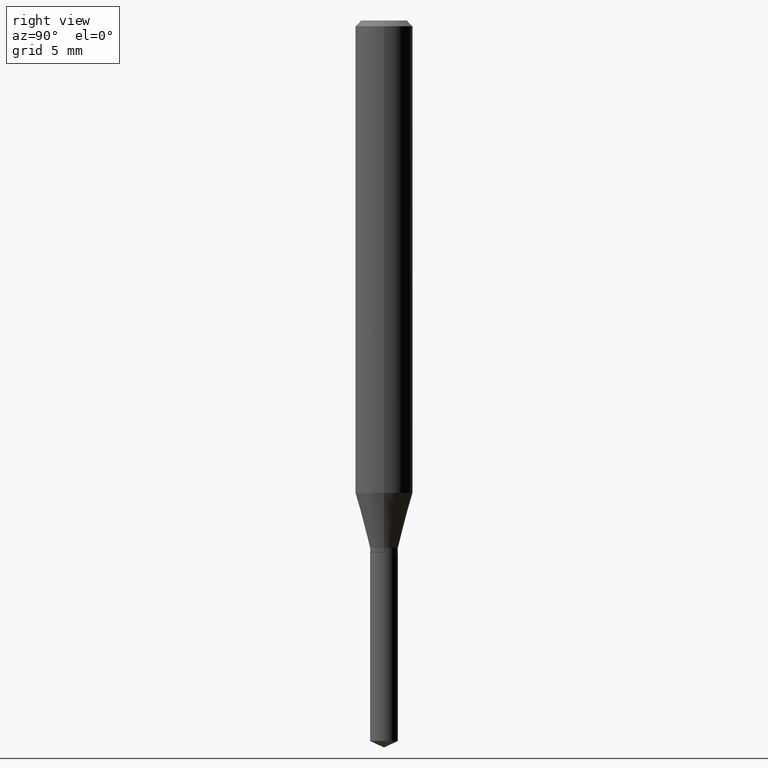
[diagram: clean part render]
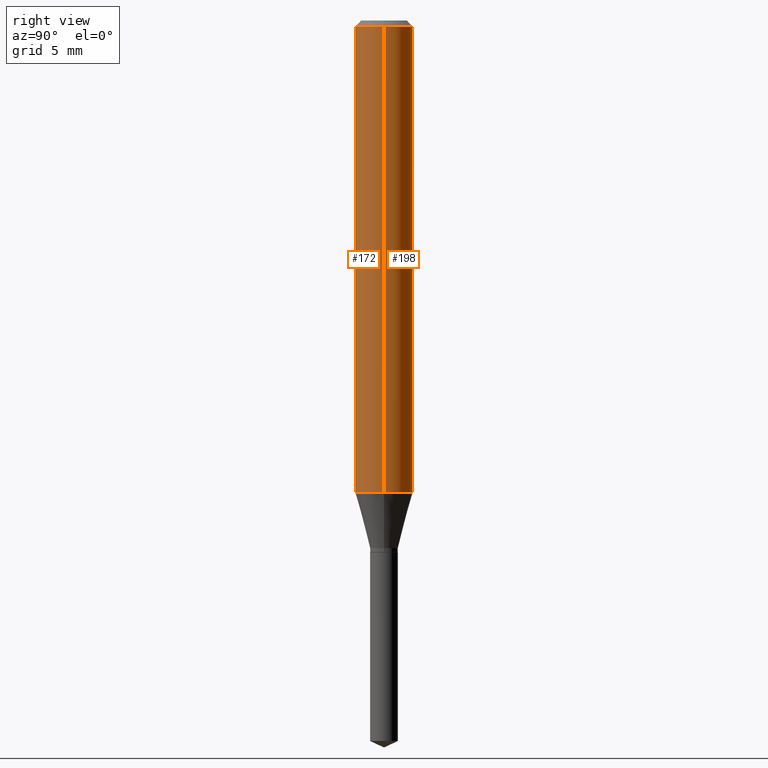
[diagram: same view with one multi-face feature highlighted, each face labeled with its STEP entity id]
A machine part, right view. The highlighted faces form ONE feature: a constant-radius fillet chain: 2 tangent blend faces with common blend radius 1.4999 mm. The faces share edges in the B-rep.
Their STEP definitions:
[1] entity #198 (Cylinder):
#4 = LINE ( 'NONE', #158, #81 ) ;
#40 = VERTEX_POINT ( 'NONE', #341 ) ;
#72 = ORIENTED_EDGE ( 'NONE', *, *, #137, .F. ) ;
#81 = VECTOR ( 'NONE', #130, 39.37007874015748143 ) ;
#83 = CARTESIAN_POINT ( 'NONE',  ( -0.05905000000000011628, -2.974397335001072911E-15, -0.9720724503691490215 ) ) ;
#98 = CARTESIAN_POINT ( 'NONE',  ( -0.05905000000000006077, 4.195754854663395916E-16, -2.904631170795524694E-30 ) ) ;
#115 = VECTOR ( 'NONE', #475, 39.37007874015748143 ) ;
#127 = DIRECTION ( 'NONE',  ( -2.445468806185136597E-29, 3.491481338843145583E-15, 1.000000000000000000 ) ) ;
#130 = DIRECTION ( 'NONE',  ( -2.445468806185136877E-29, 3.491481338843145188E-15, 1.000000000000000000 ) ) ;
#134 = ORIENTED_EDGE ( 'NONE', *, *, #385, .F. ) ;
#136 = DIRECTION ( 'NONE',  ( 1.000000000000000000, -6.982962677686266711E-15, 0.000000000000000000 ) ) ;
#137 = EDGE_CURVE ( 'NONE', #40, #268, #4, .T. ) ;
#141 = CARTESIAN_POINT ( 'NONE',  ( -0.05904999999999999832, -1.298028122073235376E-15, -0.01181000000000006871 ) ) ;
#152 = VERTEX_POINT ( 'NONE', #83 ) ;
#158 = CARTESIAN_POINT ( 'NONE',  ( 0.05905000000000006077, -4.123439461173744764E-16, 2.879382386107503023E-30 ) ) ;
#185 = DIRECTION ( 'NONE',  ( -2.445468806185136597E-29, 3.491481338843145583E-15, 1.000000000000000000 ) ) ;
#198 = ADVANCED_FACE ( 'NONE', ( #432 ), #242, .T. ) ;
#209 = CARTESIAN_POINT ( 'NONE',  ( 0.05904999999999999832, -4.535783407291118600E-16, -0.01181000000000006871 ) ) ;
#215 = LINE ( 'NONE', #98, #115 ) ;
#224 = EDGE_CURVE ( 'NONE', #152, #248, #215, .T. ) ;
#236 = AXIS2_PLACEMENT_3D ( 'NONE', #329, #471, #136 ) ;
#242 = CYLINDRICAL_SURFACE ( 'NONE', #311, 0.05905000000000006077 ) ;
#246 = CIRCLE ( 'NONE', #478, 0.05905000000000011628 ) ;
#248 = VERTEX_POINT ( 'NONE', #141 ) ;
#266 = DIRECTION ( 'NONE',  ( 1.000000000000000000, -6.982962677686266711E-15, 0.000000000000000000 ) ) ;
#268 = VERTEX_POINT ( 'NONE', #209 ) ;
#270 = ORIENTED_EDGE ( 'NONE', *, *, #224, .T. ) ;
#280 = DIRECTION ( 'NONE',  ( 1.000000000000000000, -6.982962677686266711E-15, 4.876176775795935793E-29 ) ) ;
#291 = ORIENTED_EDGE ( 'NONE', *, *, #457, .T. ) ;
#311 = AXIS2_PLACEMENT_3D ( 'NONE', #356, #127, #280 ) ;
#329 = CARTESIAN_POINT ( 'NONE',  ( 2.888098660104663328E-31, -4.123439461173779030E-17, -0.01181000000000006871 ) ) ;
#341 = CARTESIAN_POINT ( 'NONE',  ( 0.05905000000000011628, -3.806316766584788113E-15, -0.9720724503691490215 ) ) ;
#356 = CARTESIAN_POINT ( 'NONE',  ( 0.000000000000000000, 0.000000000000000000, 0.000000000000000000 ) ) ;
#371 = EDGE_LOOP ( 'NONE', ( #291, #270, #134, #72 ) ) ;
#377 = CARTESIAN_POINT ( 'NONE',  ( 2.377172854729703171E-29, -3.393972820467413587E-15, -0.9720724503691490215 ) ) ;
#385 = EDGE_CURVE ( 'NONE', #268, #248, #443, .T. ) ;
#432 = FACE_OUTER_BOUND ( 'NONE', #371, .T. ) ;
#443 = CIRCLE ( 'NONE', #236, 0.05904999999999999832 ) ;
#457 = EDGE_CURVE ( 'NONE', #40, #152, #246, .T. ) ;
#471 = DIRECTION ( 'NONE',  ( -2.445468806185136597E-29, 3.491481338843145583E-15, 1.000000000000000000 ) ) ;
#475 = DIRECTION ( 'NONE',  ( -2.445468806185136877E-29, 3.491481338843145188E-15, 1.000000000000000000 ) ) ;
#478 = AXIS2_PLACEMENT_3D ( 'NONE', #377, #185, #266 ) ;
[2] entity #172 (Cylinder):
#4 = LINE ( 'NONE', #158, #81 ) ;
#40 = VERTEX_POINT ( 'NONE', #341 ) ;
#41 = CARTESIAN_POINT ( 'NONE',  ( 0.000000000000000000, 0.000000000000000000, 0.000000000000000000 ) ) ;
#81 = VECTOR ( 'NONE', #130, 39.37007874015748143 ) ;
#83 = CARTESIAN_POINT ( 'NONE',  ( -0.05905000000000011628, -2.974397335001072911E-15, -0.9720724503691490215 ) ) ;
#90 = CYLINDRICAL_SURFACE ( 'NONE', #232, 0.05905000000000006077 ) ;
#98 = CARTESIAN_POINT ( 'NONE',  ( -0.05905000000000006077, 4.195754854663395916E-16, -2.904631170795524694E-30 ) ) ;
#115 = VECTOR ( 'NONE', #475, 39.37007874015748143 ) ;
#130 = DIRECTION ( 'NONE',  ( -2.445468806185136877E-29, 3.491481338843145188E-15, 1.000000000000000000 ) ) ;
#137 = EDGE_CURVE ( 'NONE', #40, #268, #4, .T. ) ;
#141 = CARTESIAN_POINT ( 'NONE',  ( -0.05904999999999999832, -1.298028122073235376E-15, -0.01181000000000006871 ) ) ;
#142 = CIRCLE ( 'NONE', #292, 0.05905000000000011628 ) ;
#152 = VERTEX_POINT ( 'NONE', #83 ) ;
#157 = ORIENTED_EDGE ( 'NONE', *, *, #224, .F. ) ;
#158 = CARTESIAN_POINT ( 'NONE',  ( 0.05905000000000006077, -4.123439461173744764E-16, 2.879382386107503023E-30 ) ) ;
#166 = DIRECTION ( 'NONE',  ( -2.445468806185136597E-29, 3.491481338843145583E-15, 1.000000000000000000 ) ) ;
#172 = ADVANCED_FACE ( 'NONE', ( #201 ), #90, .T. ) ;
#176 = ORIENTED_EDGE ( 'NONE', *, *, #137, .T. ) ;
#180 = EDGE_LOOP ( 'NONE', ( #157, #419, #176, #413 ) ) ;
#201 = FACE_OUTER_BOUND ( 'NONE', #180, .T. ) ;
#208 = AXIS2_PLACEMENT_3D ( 'NONE', #217, #166, #324 ) ;
#209 = CARTESIAN_POINT ( 'NONE',  ( 0.05904999999999999832, -4.535783407291118600E-16, -0.01181000000000006871 ) ) ;
#215 = LINE ( 'NONE', #98, #115 ) ;
#217 = CARTESIAN_POINT ( 'NONE',  ( 2.888098660104663328E-31, -4.123439461173779030E-17, -0.01181000000000006871 ) ) ;
#224 = EDGE_CURVE ( 'NONE', #152, #248, #215, .T. ) ;
#232 = AXIS2_PLACEMENT_3D ( 'NONE', #41, #353, #430 ) ;
#248 = VERTEX_POINT ( 'NONE', #141 ) ;
#268 = VERTEX_POINT ( 'NONE', #209 ) ;
#285 = EDGE_CURVE ( 'NONE', #152, #40, #142, .T. ) ;
#292 = AXIS2_PLACEMENT_3D ( 'NONE', #333, #331, #370 ) ;
#324 = DIRECTION ( 'NONE',  ( 1.000000000000000000, -6.982962677686266711E-15, 0.000000000000000000 ) ) ;
#331 = DIRECTION ( 'NONE',  ( -2.445468806185136597E-29, 3.491481338843145583E-15, 1.000000000000000000 ) ) ;
#333 = CARTESIAN_POINT ( 'NONE',  ( 2.377172854729703171E-29, -3.393972820467413587E-15, -0.9720724503691490215 ) ) ;
#341 = CARTESIAN_POINT ( 'NONE',  ( 0.05905000000000011628, -3.806316766584788113E-15, -0.9720724503691490215 ) ) ;
#353 = DIRECTION ( 'NONE',  ( -2.445468806185136597E-29, 3.491481338843145583E-15, 1.000000000000000000 ) ) ;
#367 = EDGE_CURVE ( 'NONE', #248, #268, #424, .T. ) ;
#370 = DIRECTION ( 'NONE',  ( 1.000000000000000000, -6.982962677686266711E-15, 0.000000000000000000 ) ) ;
#413 = ORIENTED_EDGE ( 'NONE', *, *, #367, .F. ) ;
#419 = ORIENTED_EDGE ( 'NONE', *, *, #285, .T. ) ;
#424 = CIRCLE ( 'NONE', #208, 0.05904999999999999832 ) ;
#430 = DIRECTION ( 'NONE',  ( 1.000000000000000000, -6.982962677686266711E-15, 4.876176775795935793E-29 ) ) ;
#475 = DIRECTION ( 'NONE',  ( -2.445468806185136877E-29, 3.491481338843145188E-15, 1.000000000000000000 ) ) ;